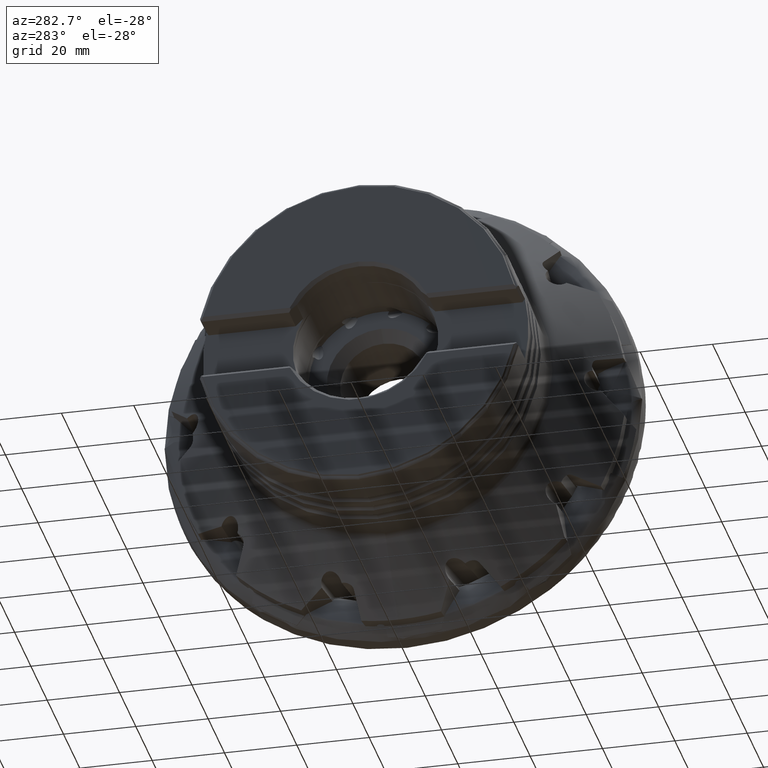
[diagram: clean part render]
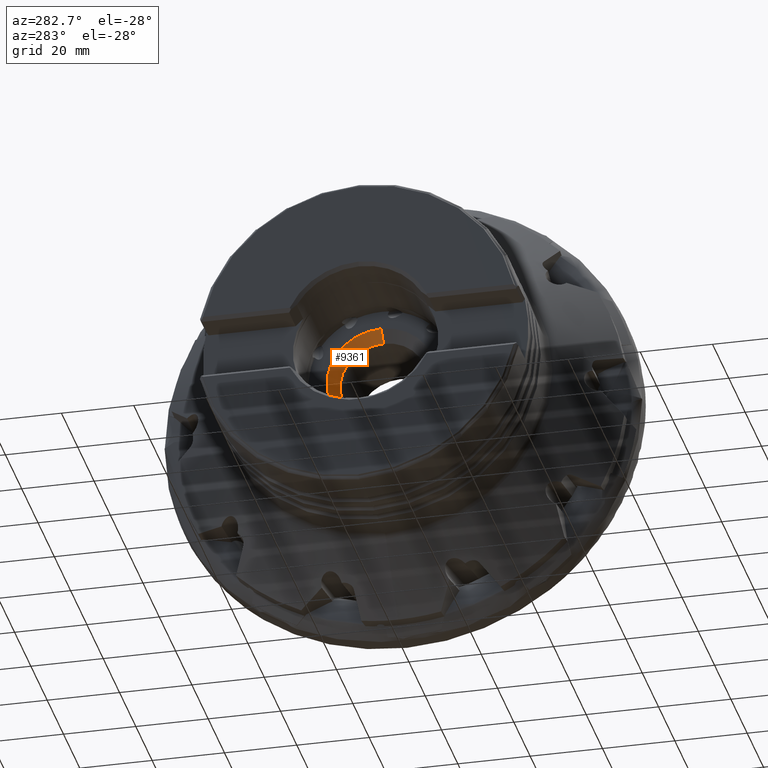
[diagram: same view with one face highlighted and labeled with its STEP entity id]
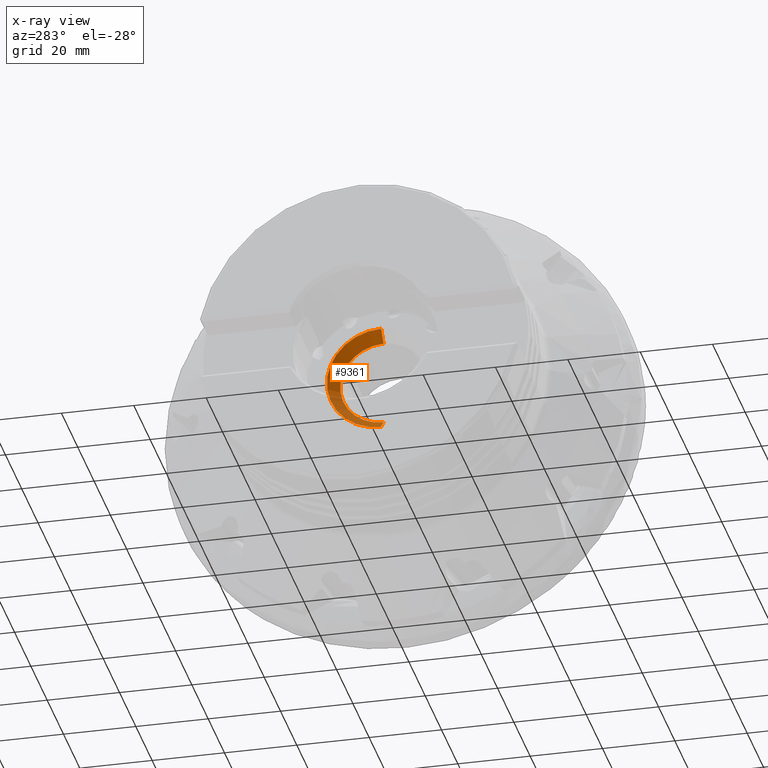
[diagram: x-ray of the same camera — body ghosted, the highlighted face saturated]
A machine part, auxiliary view. The second image highlights one B-rep face of the part: STEP entity #9361.
The next image is the same camera in x-ray: the body ghosted, the highlighted face saturated — about 27% of this face is hidden behind the body in this view.
In plain terms, the highlighted conical surface has half-angle 45 deg.
Its self-contained STEP definition (entity closure, byte-faithful):
#1276 = CARTESIAN_POINT ( 'NONE',  ( -31.15000000000000200, 0.0000000000000000000, 0.0000000000000000000 ) ) ;
#1898 = EDGE_CURVE ( 'Kante14', #16659, #2182, #10222, .T. ) ;
#1944 = ORIENTED_EDGE ( 'NONE', *, *, #1898, .F. ) ;
#2001 = EDGE_CURVE ( 'NONE', #9811, #16659, #5749, .T. ) ;
#2178 = VERTEX_POINT ( 'NONE', #4831 ) ;
#2182 = VERTEX_POINT ( 'NONE', #9315 ) ;
#3685 = CARTESIAN_POINT ( 'NONE',  ( -31.15000000000000200, 0.0000000000000000000, 0.0000000000000000000 ) ) ;
#4716 = DIRECTION ( 'NONE',  ( 1.000000000000000000, -0.0000000000000000000, -0.0000000000000000000 ) ) ;
#4831 = CARTESIAN_POINT ( 'NONE',  ( -31.15000000000000200, 0.0000000000000000000, 11.99999999999999600 ) ) ;
#5376 = DIRECTION ( 'NONE',  ( 0.0000000000000000000, 0.0000000000000000000, -1.000000000000000000 ) ) ;
#5749 = LINE ( 'NONE', #11504, #18617 ) ;
#8944 = ORIENTED_EDGE ( 'NONE', *, *, #2001, .F. ) ;
#8971 = ORIENTED_EDGE ( 'NONE', *, *, #16299, .T. ) ;
#9315 = CARTESIAN_POINT ( 'NONE',  ( -34.14999999999999900, 0.0000000000000000000, 15.00000000000000700 ) ) ;
#9361 = ADVANCED_FACE ( 'NONE', ( #21045 ), #20516, .F. ) ;
#9439 = LINE ( 'NONE', #11303, #18888 ) ;
#9811 = VERTEX_POINT ( 'NONE', #13024 ) ;
#10185 = EDGE_CURVE ( 'NONE', #2178, #2182, #9439, .T. ) ;
#10222 = CIRCLE ( 'NONE', #15698, 15.00000000000000700 ) ;
#11303 = CARTESIAN_POINT ( 'NONE',  ( -31.15000000000000200, 0.0000000000000000000, 11.99999999999999600 ) ) ;
#11504 = CARTESIAN_POINT ( 'NONE',  ( -31.15000000000000200, 1.469576158976823600E-015, -11.99999999999999600 ) ) ;
#12906 = AXIS2_PLACEMENT_3D ( 'NONE', #3685, #15434, #5376 ) ;
#13024 = CARTESIAN_POINT ( 'NONE',  ( -31.15000000000000200, 1.653273178848927100E-015, -11.99999999999999600 ) ) ;
#14690 = DIRECTION ( 'NONE',  ( -0.7071067811865463500, 0.0000000000000000000, 0.7071067811865487900 ) ) ;
#14783 = DIRECTION ( 'NONE',  ( 0.0000000000000000000, 0.0000000000000000000, -1.000000000000000000 ) ) ;
#15035 = ORIENTED_EDGE ( 'NONE', *, *, #10185, .T. ) ;
#15434 = DIRECTION ( 'NONE',  ( 1.000000000000000000, -0.0000000000000000000, -0.0000000000000000000 ) ) ;
#15698 = AXIS2_PLACEMENT_3D ( 'NONE', #16454, #4716, #14783 ) ;
#16299 = EDGE_CURVE ( 'NONE', #9811, #2178, #19313, .T. ) ;
#16344 = DIRECTION ( 'NONE',  ( -1.000000000000000000, 0.0000000000000000000, 0.0000000000000000000 ) ) ;
#16454 = CARTESIAN_POINT ( 'NONE',  ( -34.14999999999999900, 0.0000000000000000000, 0.0000000000000000000 ) ) ;
#16659 = VERTEX_POINT ( 'NONE', #19992 ) ;
#17888 = AXIS2_PLACEMENT_3D ( 'NONE', #1276, #16344, #21434 ) ;
#18617 = VECTOR ( 'NONE', #21584, 1000.000000000000000 ) ;
#18888 = VECTOR ( 'NONE', #14690, 1000.000000000000000 ) ;
#19313 = CIRCLE ( 'NONE', #12906, 11.99999999999999600 ) ;
#19992 = CARTESIAN_POINT ( 'NONE',  ( -34.14999999999999900, 1.836970198721030800E-015, -15.00000000000000700 ) ) ;
#20516 = CONICAL_SURFACE ( 'NONE', #17888, 11.99999999999999600, 0.7853981633974500600 ) ;
#20868 = EDGE_LOOP ( 'NONE', ( #8944, #8971, #15035, #1944 ) ) ;
#21045 = FACE_OUTER_BOUND ( 'NONE', #20868, .T. ) ;
#21434 = DIRECTION ( 'NONE',  ( 0.0000000000000000000, 0.0000000000000000000, 1.000000000000000000 ) ) ;
#21584 = DIRECTION ( 'NONE',  ( -0.7071067811865463500, 8.659560562354948900E-017, -0.7071067811865487900 ) ) ;